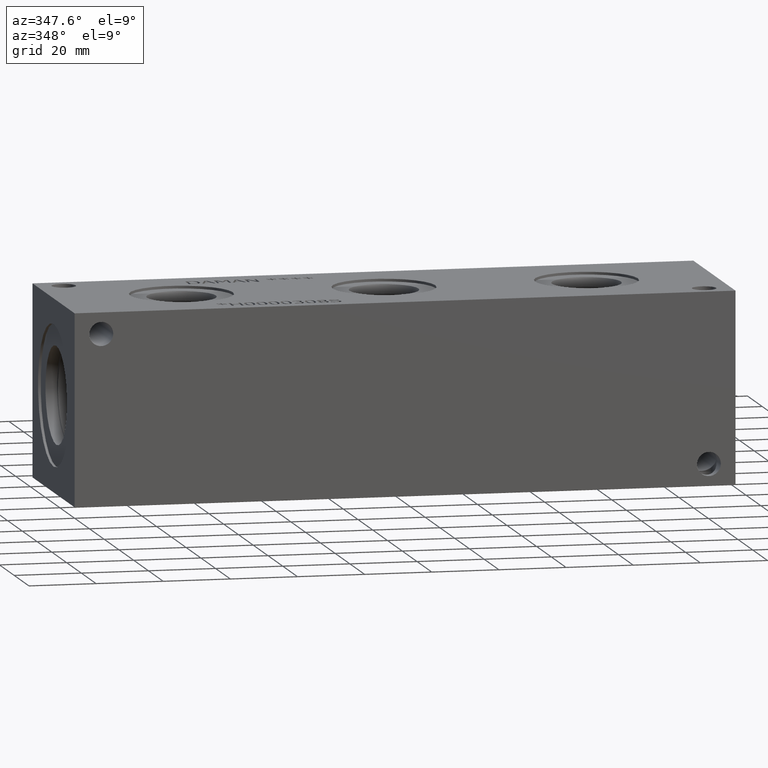
[diagram: clean part render]
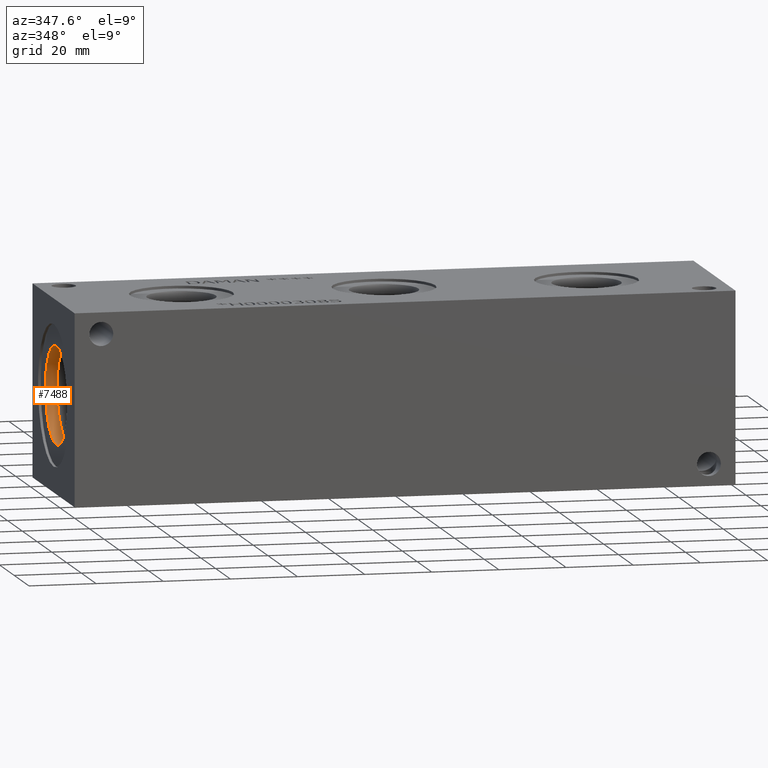
[diagram: same view with one face highlighted and labeled with its STEP entity id]
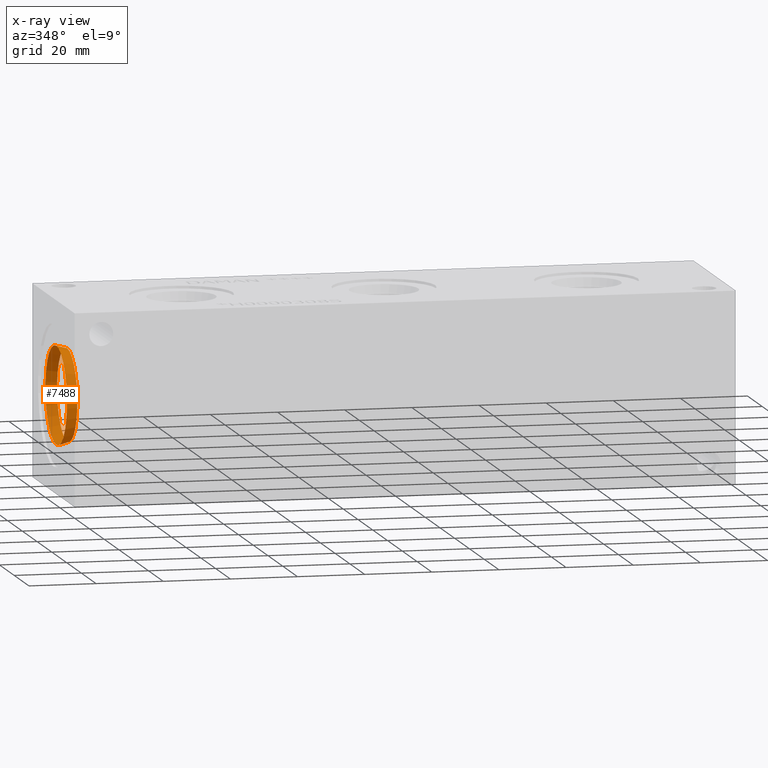
[diagram: x-ray of the same camera — body ghosted, the highlighted face saturated]
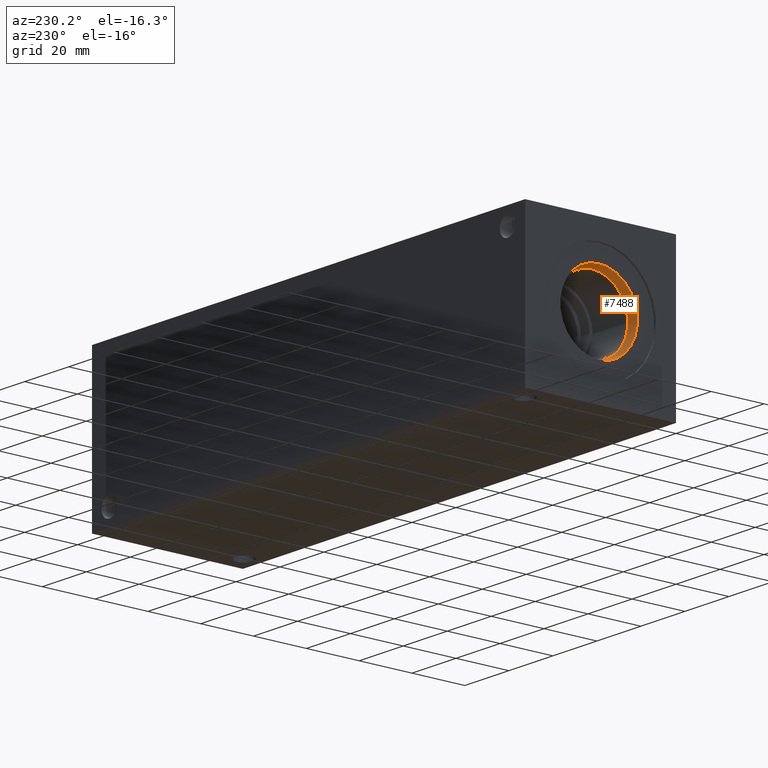
[diagram: same view with one face highlighted and labeled with its STEP entity id]
A machine part, auxiliary view. The second image highlights one B-rep face of the part: STEP entity #7488.
The next image is the same camera in x-ray: the body ghosted, the highlighted face saturated — about 0% of this face is hidden behind the body in this view.
A second angle (auxiliary view) of the same face is appended — the face is thin or edge-on in the first view.
In plain terms, the highlighted conical surface has half-angle 15.007 deg.
Its self-contained STEP definition (entity closure, byte-faithful):
#16=CONICAL_SURFACE('',#7805,14.15415,0.261922137297759);
#103=CIRCLE('',#7803,14.5923);
#104=CIRCLE('',#7804,14.5923);
#105=CIRCLE('',#7806,13.716);
#106=CIRCLE('',#7807,13.716);
#770=FACE_OUTER_BOUND('',#1189,.T.);
#1189=EDGE_LOOP('',(#6459,#6460,#6461,#6462,#6463,#6464));
#1895=LINE('',#12860,#2579);
#2579=VECTOR('',#9073,14.15415);
#3500=VERTEX_POINT('',#12854);
#3501=VERTEX_POINT('',#12855);
#3502=VERTEX_POINT('',#12859);
#3503=VERTEX_POINT('',#12861);
#4510=EDGE_CURVE('',#3500,#3501,#103,.T.);
#4511=EDGE_CURVE('',#3501,#3500,#104,.T.);
#4512=EDGE_CURVE('',#3501,#3502,#1895,.T.);
#4513=EDGE_CURVE('',#3502,#3503,#105,.T.);
#4514=EDGE_CURVE('',#3503,#3502,#106,.T.);
#6459=ORIENTED_EDGE('',*,*,#4510,.F.);
#6460=ORIENTED_EDGE('',*,*,#4511,.F.);
#6461=ORIENTED_EDGE('',*,*,#4512,.T.);
#6462=ORIENTED_EDGE('',*,*,#4513,.T.);
#6463=ORIENTED_EDGE('',*,*,#4514,.T.);
#6464=ORIENTED_EDGE('',*,*,#4512,.F.);
#7488=ADVANCED_FACE('',(#770),#16,.F.);
#7803=AXIS2_PLACEMENT_3D('',#12856,#9067,#9068);
#7804=AXIS2_PLACEMENT_3D('',#12857,#9069,#9070);
#7805=AXIS2_PLACEMENT_3D('',#12858,#9071,#9072);
#7806=AXIS2_PLACEMENT_3D('',#12862,#9074,#9075);
#7807=AXIS2_PLACEMENT_3D('',#12863,#9076,#9077);
#9067=DIRECTION('center_axis',(1.,0.,0.));
#9068=DIRECTION('ref_axis',(0.,0.,-1.));
#9069=DIRECTION('center_axis',(1.,0.,0.));
#9070=DIRECTION('ref_axis',(0.,0.,-1.));
#9071=DIRECTION('center_axis',(-1.,0.,0.));
#9072=DIRECTION('ref_axis',(0.,0.,1.));
#9073=DIRECTION('',(0.965894049104117,-3.17107115342792E-17,0.258937610063224));
#9074=DIRECTION('center_axis',(1.,0.,0.));
#9075=DIRECTION('ref_axis',(0.,0.,-1.));
#9076=DIRECTION('center_axis',(1.,0.,0.));
#9077=DIRECTION('ref_axis',(0.,0.,-1.));
#12854=CARTESIAN_POINT('',(0.7874,28.575,43.1673));
#12855=CARTESIAN_POINT('',(0.787399999999998,28.575,13.9827));
#12856=CARTESIAN_POINT('Origin',(0.7874,28.575,28.575));
#12857=CARTESIAN_POINT('Origin',(0.7874,28.575,28.575));
#12858=CARTESIAN_POINT('Origin',(2.42179555,28.575,28.575));
#12859=CARTESIAN_POINT('',(4.0561911,28.575,14.859));
#12860=CARTESIAN_POINT('',(2.42179555,28.575,14.42085));
#12861=CARTESIAN_POINT('',(4.0561911,28.575,42.291));
#12862=CARTESIAN_POINT('Origin',(4.0561911,28.575,28.575));
#12863=CARTESIAN_POINT('Origin',(4.0561911,28.575,28.575));